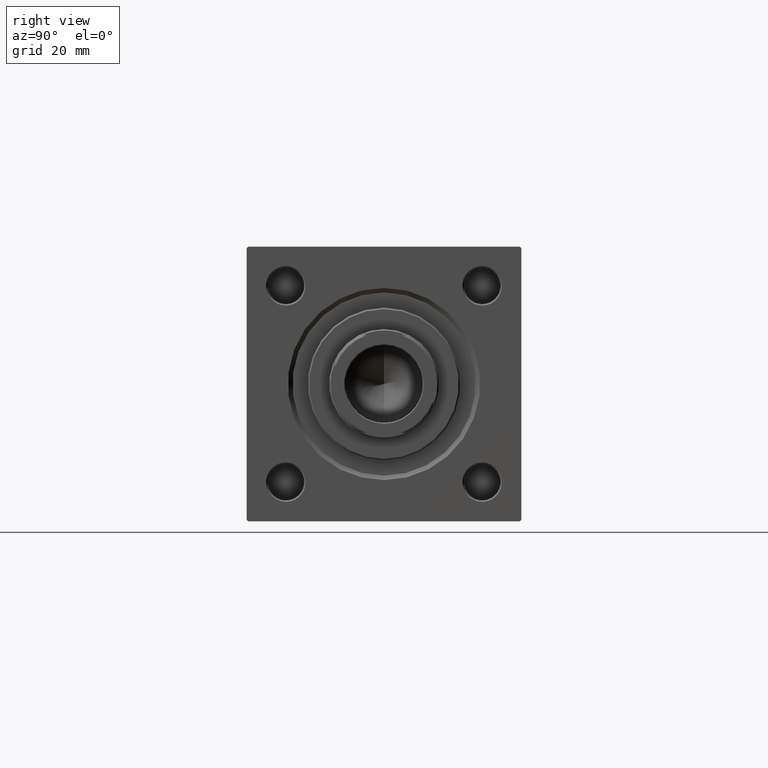
[diagram: clean part render]
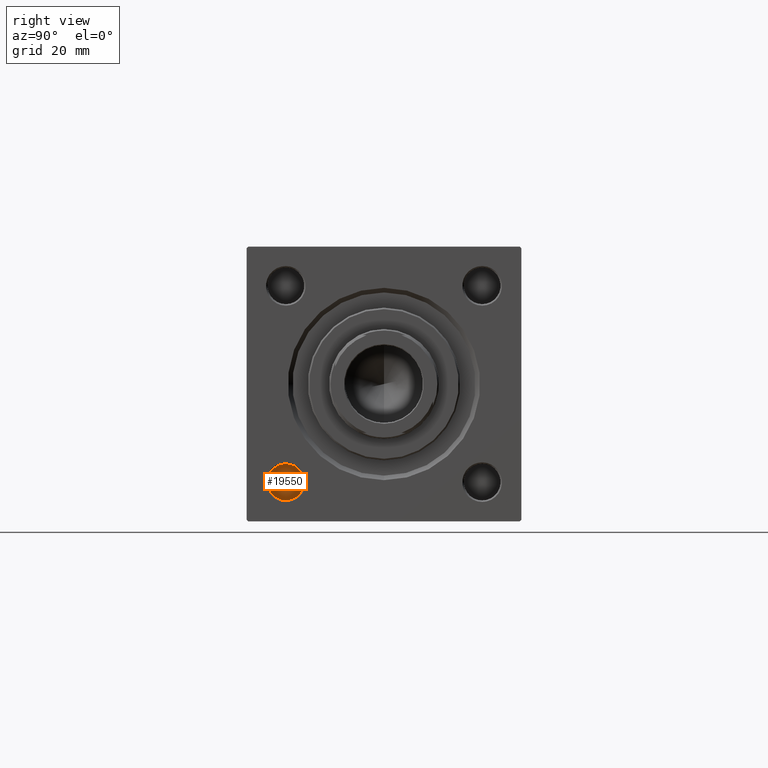
[diagram: same view with one face highlighted and labeled with its STEP entity id]
A machine part, right view. The second image highlights one B-rep face of the part: STEP entity #19550.
In plain terms, the highlighted planar face has unit normal (1, 0, 0).
Its self-contained STEP definition (entity closure, byte-faithful):
#377 = EDGE_CURVE ( 'NONE', #5414, #23342, #6001, .T. ) ;
#5414 = VERTEX_POINT ( 'NONE', #36718 ) ;
#6001 = CIRCLE ( 'NONE', #26291, 5.999999999999991118 ) ;
#7987 = EDGE_LOOP ( 'NONE', ( #21385, #45632 ) ) ;
#8025 = DIRECTION ( 'NONE',  ( 0.000000000000000000, 0.000000000000000000, -1.000000000000000000 ) ) ;
#10464 = DIRECTION ( 'NONE',  ( 1.000000000000000000, 0.000000000000000000, 0.000000000000000000 ) ) ;
#13361 = CARTESIAN_POINT ( 'NONE',  ( 130.0000000000000000, -32.14999999999999858, -32.14999999999999858 ) ) ;
#17635 = CIRCLE ( 'NONE', #33032, 5.999999999999991118 ) ;
#17828 = CARTESIAN_POINT ( 'NONE',  ( 130.0000000000000000, -32.14999999999999858, -32.14999999999999858 ) ) ;
#19550 = ADVANCED_FACE ( 'NONE', ( #31375 ), #42796, .T. ) ;
#20437 = DIRECTION ( 'NONE',  ( 1.000000000000000000, 0.000000000000000000, 0.000000000000000000 ) ) ;
#21385 = ORIENTED_EDGE ( 'NONE', *, *, #43759, .T. ) ;
#23342 = VERTEX_POINT ( 'NONE', #23458 ) ;
#23458 = CARTESIAN_POINT ( 'NONE',  ( 130.0000000000000000, -32.14999999999999858, -38.14999999999999147 ) ) ;
#24781 = DIRECTION ( 'NONE',  ( 0.000000000000000000, 0.000000000000000000, -1.000000000000000000 ) ) ;
#25949 = DIRECTION ( 'NONE',  ( 0.000000000000000000, 0.000000000000000000, -1.000000000000000000 ) ) ;
#26291 = AXIS2_PLACEMENT_3D ( 'NONE', #13361, #48643, #24781 ) ;
#26767 = AXIS2_PLACEMENT_3D ( 'NONE', #28318, #20437, #8025 ) ;
#28318 = CARTESIAN_POINT ( 'NONE',  ( 130.0000000000000000, -32.14999999999999858, -32.14999999999999858 ) ) ;
#31375 = FACE_OUTER_BOUND ( 'NONE', #7987, .T. ) ;
#33032 = AXIS2_PLACEMENT_3D ( 'NONE', #17828, #10464, #25949 ) ;
#36718 = CARTESIAN_POINT ( 'NONE',  ( 130.0000000000000000, -32.14999999999999858, -26.15000000000000924 ) ) ;
#42796 = PLANE ( 'NONE',  #26767 ) ;
#43759 = EDGE_CURVE ( 'NONE', #23342, #5414, #17635, .T. ) ;
#45632 = ORIENTED_EDGE ( 'NONE', *, *, #377, .T. ) ;
#48643 = DIRECTION ( 'NONE',  ( 1.000000000000000000, 0.000000000000000000, 0.000000000000000000 ) ) ;